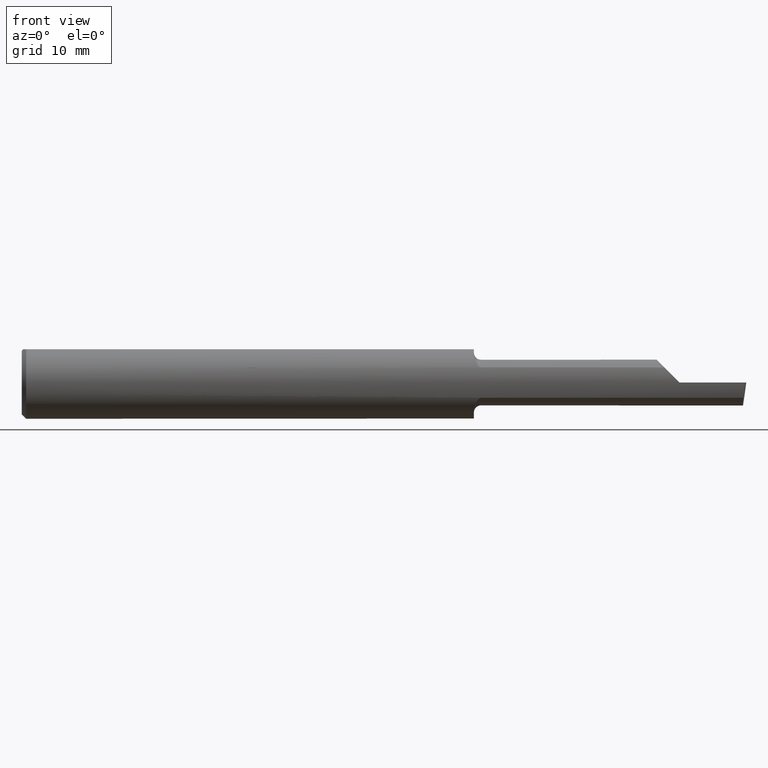
[diagram: clean part render]
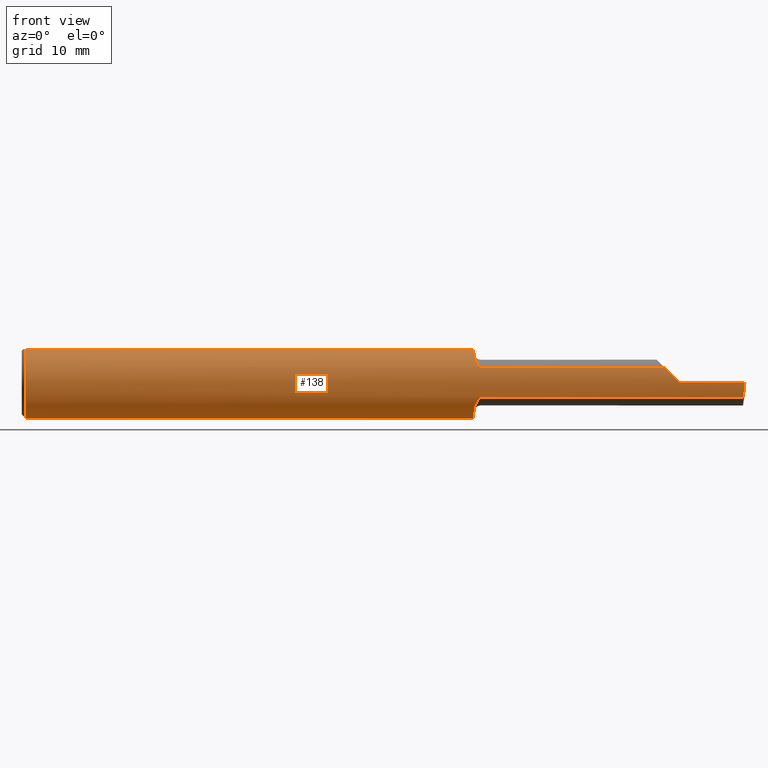
[diagram: same view with one face highlighted and labeled with its STEP entity id]
A machine part, front view. The second image highlights one B-rep face of the part: STEP entity #138.
In plain terms, the highlighted cylindrical surface (edge-blend (fillet) strip) has radius 3.1712 mm, axis along (-1, -0, -0).
Its self-contained STEP definition (entity closure, byte-faithful):
#3 = VERTEX_POINT ( 'NONE', #16 ) ;
#6 = EDGE_CURVE ( 'NONE', #158, #464, #121, .T. ) ;
#8 = CARTESIAN_POINT ( 'NONE',  ( 1.581867218484673376, -0.1130881303947560979, -0.05290831216931966147 ) ) ;
#13 = DIRECTION ( 'NONE',  ( 1.000000000000000000, -3.414809992080329023E-18, 0.0000000000000000000 ) ) ;
#16 = CARTESIAN_POINT ( 'NONE',  ( 1.560000000000000275, -0.07089166666666688044, 0.1027710761704001691 ) ) ;
#22 = CARTESIAN_POINT ( 'NONE',  ( 1.559999999999996723, -0.07604212793636101753, 0.09921827904968776035 ) ) ;
#25 = VERTEX_POINT ( 'NONE', #385 ) ;
#28 = EDGE_CURVE ( 'NONE', #414, #618, #98, .T. ) ;
#29 = DIRECTION ( 'NONE',  ( -1.000000000000000000, 3.414809992080329023E-18, -0.0000000000000000000 ) ) ;
#32 = CARTESIAN_POINT ( 'NONE',  ( 2.234090882882975748, -0.1209466293052443159, 0.03590911711702327036 ) ) ;
#35 = CARTESIAN_POINT ( 'NONE',  ( 0.01499999999999999424, 0.0000000000000000000, 0.0000000000000000000 ) ) ;
#38 = DIRECTION ( 'NONE',  ( 0.0000000000000000000, 0.0000000000000000000, 1.000000000000000000 ) ) ;
#44 = EDGE_CURVE ( 'NONE', #618, #464, #177, .T. ) ;
#48 = ORIENTED_EDGE ( 'NONE', *, *, #555, .T. ) ;
#50 = CARTESIAN_POINT ( 'NONE',  ( 1.560000000000000275, -0.07089166666666688044, -0.1027710761704001691 ) ) ;
#52 = CARTESIAN_POINT ( 'NONE',  ( 1.560000000000000275, -0.04895916665957457392, 0.1148500000000000215 ) ) ;
#54 = CARTESIAN_POINT ( 'NONE',  ( 1.935000000000000053, -0.1133222222222223519, 0.05239843939104731063 ) ) ;
#60 = LINE ( 'NONE', #54, #197 ) ;
#61 = LINE ( 'NONE', #335, #441 ) ;
#62 = DIRECTION ( 'NONE',  ( -1.000000000000000000, -0.0000000000000000000, -0.0000000000000000000 ) ) ;
#64 = ORIENTED_EDGE ( 'NONE', *, *, #568, .F. ) ;
#81 = ORIENTED_EDGE ( 'NONE', *, *, #467, .F. ) ;
#86 = ORIENTED_EDGE ( 'NONE', *, *, #248, .T. ) ;
#88 = VECTOR ( 'NONE', #118, 39.37007874015748143 ) ;
#94 = CARTESIAN_POINT ( 'NONE',  ( 1.578003366130775520, -0.1118869025553488189, 0.05540929543234566351 ) ) ;
#97 = DIRECTION ( 'NONE',  ( -1.000000000000000000, -0.0000000000000000000, -0.0000000000000000000 ) ) ;
#98 = B_SPLINE_CURVE_WITH_KNOTS ( 'NONE', 3,
 ( #665, #223, #8, #417, #363, #420, #269, #122, #115, #629, #472, #371, #432, #256 ),
 .UNSPECIFIED., .F., .F.,
 ( 4, 2, 2, 2, 2, 2, 4 ),
 ( 1.961860195742902937E-07, 0.0001199556417434004984, 0.0002397150974672266905, 0.0004792340089148647633, 0.0009582718318101505041, 0.001437309654705436462, 0.001916347477600722094 ),
 .UNSPECIFIED. ) ;
#101 = B_SPLINE_CURVE_WITH_KNOTS ( 'NONE', 3,
 ( #289, #22, #447, #396, #642, #409, #489, #144, #215, #94, #160, #313, #560, #557 ),
 .UNSPECIFIED., .F., .F.,
 ( 4, 2, 2, 2, 2, 2, 4 ),
 ( 6.218642020841720630E-05, 0.0005341583913332135190, 0.001006130362458009832, 0.001478102333582805711, 0.001714088319145208638, 0.001832081311926402837, 0.001950074304707597470 ),
 .UNSPECIFIED. ) ;
#104 = ORIENTED_EDGE ( 'NONE', *, *, #28, .F. ) ;
#106 = DIRECTION ( 'NONE',  ( 1.000000000000000000, -3.414809992080329023E-18, 0.0000000000000000000 ) ) ;
#112 = CARTESIAN_POINT ( 'NONE',  ( 0.01499999999999999424, 0.0000000000000000000, -0.1248500000000000026 ) ) ;
#113 = EDGE_CURVE ( 'NONE', #158, #634, #325, .T. ) ;
#115 = CARTESIAN_POINT ( 'NONE',  ( 1.566709462345916570, -0.1014961360546400848, -0.07295290821911699919 ) ) ;
#118 = DIRECTION ( 'NONE',  ( 1.000000000000000000, 0.0000000000000000000, 0.0000000000000000000 ) ) ;
#121 = LINE ( 'NONE', #429, #88 ) ;
#122 = CARTESIAN_POINT ( 'NONE',  ( 1.568837986083220226, -0.1048226606062678534, -0.06804511026469603485 ) ) ;
#136 = ORIENTED_EDGE ( 'NONE', *, *, #416, .F. ) ;
#138 = ADVANCED_FACE ( 'NONE', ( #179 ), #485, .T. ) ;
#139 = CARTESIAN_POINT ( 'NONE',  ( 2.251833290544947630, -0.1248500000000000165, 0.01816670945505163143 ) ) ;
#144 = CARTESIAN_POINT ( 'NONE',  ( 1.573217602974940066, -0.1090277136498278843, 0.06089509507572534591 ) ) ;
#146 = CARTESIAN_POINT ( 'NONE',  ( 0.0000000000000000000, 0.0000000000000000000, 0.0000000000000000000 ) ) ;
#148 = DIRECTION ( 'NONE',  ( -1.000000000000000000, -0.0000000000000000000, -0.0000000000000000000 ) ) ;
#152 = ORIENTED_EDGE ( 'NONE', *, *, #6, .T. ) ;
#154 = AXIS2_PLACEMENT_3D ( 'NONE', #146, #97, #611 ) ;
#155 = DIRECTION ( 'NONE',  ( 0.0000000000000000000, 1.000000000000000000, 0.0000000000000000000 ) ) ;
#158 = VERTEX_POINT ( 'NONE', #509 ) ;
#160 = CARTESIAN_POINT ( 'NONE',  ( 1.579156347344548239, -0.1123603976562050771, 0.05443691454869342000 ) ) ;
#166 = ORIENTED_EDGE ( 'NONE', *, *, #191, .T. ) ;
#177 = CIRCLE ( 'NONE', #484, 0.1248500000000000026 ) ;
#179 = FACE_OUTER_BOUND ( 'NONE', #185, .T. ) ;
#183 = VERTEX_POINT ( 'NONE', #654 ) ;
#185 = EDGE_LOOP ( 'NONE', ( #645, #166, #86, #239, #655, #81, #64, #48, #136, #488, #152, #382, #104 ) ) ;
#186 = VERTEX_POINT ( 'NONE', #247 ) ;
#190 = CARTESIAN_POINT ( 'NONE',  ( 2.270000000000000018, -0.1248500000000000165, 2.816687638038912303E-17 ) ) ;
#191 = EDGE_CURVE ( 'NONE', #183, #25, #329, .T. ) ;
#197 = VECTOR ( 'NONE', #106, 39.37007874015748143 ) ;
#215 = CARTESIAN_POINT ( 'NONE',  ( 1.574891482046761437, -0.1103130882036816862, 0.05851436580809123850 ) ) ;
#223 = CARTESIAN_POINT ( 'NONE',  ( 1.583397973893800659, -0.1133222222222222964, -0.05239843939104738696 ) ) ;
#228 = EDGE_CURVE ( 'NONE', #546, #507, #498, .T. ) ;
#230 = DIRECTION ( 'NONE',  ( 0.0000000000000000000, 0.0000000000000000000, 1.000000000000000000 ) ) ;
#231 = CARTESIAN_POINT ( 'NONE',  ( 1.560000000000000275, 0.04895916665957456004, 0.1148500000000000076 ) ) ;
#239 = ORIENTED_EDGE ( 'NONE', *, *, #228, .T. ) ;
#246 = CARTESIAN_POINT ( 'NONE',  ( 2.493107549887202623, -0.1248500000000000026, -0.01816670945505170429 ) ) ;
#247 = CARTESIAN_POINT ( 'NONE',  ( 1.585000000000000187, -0.1133222222222222825, 0.05239843939104733145 ) ) ;
#248 = EDGE_CURVE ( 'NONE', #25, #546, #586, .T. ) ;
#251 = VERTEX_POINT ( 'NONE', #275 ) ;
#256 = CARTESIAN_POINT ( 'NONE',  ( 1.560000000000000275, -0.07089166666666688044, -0.1027710761704001691 ) ) ;
#269 = CARTESIAN_POINT ( 'NONE',  ( 1.573205018706407499, -0.1090156405642971477, -0.06091562844815642808 ) ) ;
#275 = CARTESIAN_POINT ( 'NONE',  ( 0.01499999999999999077, -0.04895916665957456004, 0.1148500000000000215 ) ) ;
#276 = CARTESIAN_POINT ( 'NONE',  ( 4.111069666048746882E-31, -0.1248499999999999888, 9.802154982235641300E-16 ) ) ;
#279 = CARTESIAN_POINT ( 'NONE',  ( 0.01499999999999999424, 0.0000000000000000000, 0.0000000000000000000 ) ) ;
#283 = VECTOR ( 'NONE', #345, 39.37007874015748143 ) ;
#284 = CARTESIAN_POINT ( 'NONE',  ( 2.217601560608951861, -0.1133222222222222686, 0.05239843939104743553 ) ) ;
#289 = CARTESIAN_POINT ( 'NONE',  ( 1.560000000000000275, -0.07089166666666688044, 0.1027710761704001691 ) ) ;
#294 = CARTESIAN_POINT ( 'NONE',  ( 1.560000000000000275, 0.0000000000000000000, 0.0000000000000000000 ) ) ;
#309 = CIRCLE ( 'NONE', #659, 0.1248500000000000026 ) ;
#313 = CARTESIAN_POINT ( 'NONE',  ( 1.581855009147952407, -0.1130869929873387497, 0.05291095013438983780 ) ) ;
#325 = CIRCLE ( 'NONE', #419, 0.1248500000000000026 ) ;
#329 =( BOUNDED_CURVE ( )  B_SPLINE_CURVE ( 3, ( #502, #652, #246, #333 ),
 .UNSPECIFIED., .F., .F. ) 
 B_SPLINE_CURVE_WITH_KNOTS ( ( 4, 4 ),
 ( 0.9276418632516072460, 1.360746882514361156 ),
 .UNSPECIFIED. ) 
 CURVE ( )  GEOMETRIC_REPRESENTATION_ITEM ( )  RATIONAL_B_SPLINE_CURVE ( ( 1.000000000000000000, 0.9844293286710340540, 0.9844293286710340540, 1.000000000000000000 ) ) 
 REPRESENTATION_ITEM ( '' )  );
#333 = CARTESIAN_POINT ( 'NONE',  ( 2.495338905960690301, -0.1248500000000000582, -6.632093541198147639E-17 ) ) ;
#335 = CARTESIAN_POINT ( 'NONE',  ( 1.935000000000000053, -0.1133222222222223519, -0.05239843939104731063 ) ) ;
#340 = DIRECTION ( 'NONE',  ( -1.000000000000000000, -0.0000000000000000000, -0.0000000000000000000 ) ) ;
#345 = DIRECTION ( 'NONE',  ( -1.000000000000000000, -0.0000000000000000000, -0.0000000000000000000 ) ) ;
#359 = LINE ( 'NONE', #367, #657 ) ;
#362 = CARTESIAN_POINT ( 'NONE',  ( 1.585000000000000187, -0.1133222222222222131, -0.05239843939104739390 ) ) ;
#363 = CARTESIAN_POINT ( 'NONE',  ( 1.578018389903473873, -0.1118940578004066627, -0.05539504279880008014 ) ) ;
#367 = CARTESIAN_POINT ( 'NONE',  ( 0.0000000000000000000, -0.04895916665957456004, 0.1148500000000000076 ) ) ;
#371 = CARTESIAN_POINT ( 'NONE',  ( 1.560429435078794835, -0.08094870196673342733, -0.09525057567498892985 ) ) ;
#382 = ORIENTED_EDGE ( 'NONE', *, *, #44, .F. ) ;
#385 = CARTESIAN_POINT ( 'NONE',  ( 2.495338905960690301, -0.1248500000000000582, -6.632093541198147639E-17 ) ) ;
#386 = AXIS2_PLACEMENT_3D ( 'NONE', #294, #461, #155 ) ;
#396 = CARTESIAN_POINT ( 'NONE',  ( 1.562066153268989011, -0.08982957272875709276, 0.08692514756739024018 ) ) ;
#409 = CARTESIAN_POINT ( 'NONE',  ( 1.566702553529778719, -0.1014824713796366878, 0.07297083456247521749 ) ) ;
#414 = VERTEX_POINT ( 'NONE', #362 ) ;
#416 = EDGE_CURVE ( 'NONE', #634, #251, #309, .T. ) ;
#417 = CARTESIAN_POINT ( 'NONE',  ( 1.579195140613335768, -0.1123729516825158897, -0.05441079362540559433 ) ) ;
#419 = AXIS2_PLACEMENT_3D ( 'NONE', #35, #148, #38 ) ;
#420 = CARTESIAN_POINT ( 'NONE',  ( 1.574878942730255638, -0.1103076286869489747, -0.05852540734030604180 ) ) ;
#429 = CARTESIAN_POINT ( 'NONE',  ( 0.0000000000000000000, 0.04895916665957457392, 0.1148500000000000076 ) ) ;
#432 = CARTESIAN_POINT ( 'NONE',  ( 1.560000000000000275, -0.07605073478940857501, -0.09921234202752106379 ) ) ;
#441 = VECTOR ( 'NONE', #29, 39.37007874015748143 ) ;
#447 = CARTESIAN_POINT ( 'NONE',  ( 1.560418395875214470, -0.08085314529530901462, 0.09533153891603383945 ) ) ;
#458 = EDGE_CURVE ( 'NONE', #183, #414, #61, .T. ) ;
#461 = DIRECTION ( 'NONE',  ( 1.000000000000000000, -3.414809992080329023E-18, 0.0000000000000000000 ) ) ;
#464 = VERTEX_POINT ( 'NONE', #231 ) ;
#467 = EDGE_CURVE ( 'NONE', #3, #186, #101, .T. ) ;
#472 = CARTESIAN_POINT ( 'NONE',  ( 1.562089430766778086, -0.08992021952243410554, -0.08683155323701798045 ) ) ;
#479 = VERTEX_POINT ( 'NONE', #52 ) ;
#484 = AXIS2_PLACEMENT_3D ( 'NONE', #515, #13, #626 ) ;
#485 = CYLINDRICAL_SURFACE ( 'NONE', #154, 0.1248500000000000026 ) ;
#488 = ORIENTED_EDGE ( 'NONE', *, *, #113, .F. ) ;
#489 = CARTESIAN_POINT ( 'NONE',  ( 1.568812999615359693, -0.1047986892473505710, 0.06808587976958066501 ) ) ;
#498 =( BOUNDED_CURVE ( )  B_SPLINE_CURVE ( 3, ( #190, #139, #32, #284 ),
 .UNSPECIFIED., .F., .T. ) 
 B_SPLINE_CURVE_WITH_KNOTS ( ( 4, 4 ),
 ( 4.712388980384688786, 5.145493999647445804 ),
 .UNSPECIFIED. ) 
 CURVE ( )  GEOMETRIC_REPRESENTATION_ITEM ( )  RATIONAL_B_SPLINE_CURVE ( ( 1.000000000000000000, 0.9844293286710339430, 0.9844293286710339430, 1.000000000000000000 ) ) 
 REPRESENTATION_ITEM ( '' )  );
#502 = CARTESIAN_POINT ( 'NONE',  ( 2.489204846642126157, -0.1133222222222223519, -0.05239843939104731063 ) ) ;
#507 = VERTEX_POINT ( 'NONE', #563 ) ;
#509 = CARTESIAN_POINT ( 'NONE',  ( 0.01499999999999999424, 0.04895916665957457392, 0.1148500000000000076 ) ) ;
#515 = CARTESIAN_POINT ( 'NONE',  ( 1.560000000000000275, 0.0000000000000000000, 0.0000000000000000000 ) ) ;
#527 = CIRCLE ( 'NONE', #386, 0.1248500000000000026 ) ;
#546 = VERTEX_POINT ( 'NONE', #667 ) ;
#555 = EDGE_CURVE ( 'NONE', #479, #251, #359, .T. ) ;
#557 = CARTESIAN_POINT ( 'NONE',  ( 1.585000000000000187, -0.1133222222222222825, 0.05239843939104733145 ) ) ;
#560 = CARTESIAN_POINT ( 'NONE',  ( 1.583393805215130179, -0.1133222222232597443, 0.05239843938880400093 ) ) ;
#563 = CARTESIAN_POINT ( 'NONE',  ( 2.217601560608951861, -0.1133222222222222686, 0.05239843939104743553 ) ) ;
#568 = EDGE_CURVE ( 'NONE', #479, #3, #527, .T. ) ;
#586 = LINE ( 'NONE', #276, #283 ) ;
#607 = EDGE_CURVE ( 'NONE', #186, #507, #60, .T. ) ;
#611 = DIRECTION ( 'NONE',  ( 0.0000000000000000000, 0.0000000000000000000, 1.000000000000000000 ) ) ;
#618 = VERTEX_POINT ( 'NONE', #50 ) ;
#626 = DIRECTION ( 'NONE',  ( 0.0000000000000000000, 1.000000000000000000, 0.0000000000000000000 ) ) ;
#629 = CARTESIAN_POINT ( 'NONE',  ( 1.563310246323733832, -0.09402499227299762619, -0.08235832246780928900 ) ) ;
#634 = VERTEX_POINT ( 'NONE', #112 ) ;
#642 = CARTESIAN_POINT ( 'NONE',  ( 1.563311842522019601, -0.09402697795089834387, 0.08235509766544017729 ) ) ;
#645 = ORIENTED_EDGE ( 'NONE', *, *, #458, .F. ) ;
#652 = CARTESIAN_POINT ( 'NONE',  ( 2.491030522740640407, -0.1209466293052442881, -0.03590911711702318015 ) ) ;
#654 = CARTESIAN_POINT ( 'NONE',  ( 2.489204846642126157, -0.1133222222222223519, -0.05239843939104731063 ) ) ;
#655 = ORIENTED_EDGE ( 'NONE', *, *, #607, .F. ) ;
#657 = VECTOR ( 'NONE', #62, 39.37007874015748143 ) ;
#659 = AXIS2_PLACEMENT_3D ( 'NONE', #279, #340, #230 ) ;
#665 = CARTESIAN_POINT ( 'NONE',  ( 1.585000000000000187, -0.1133222222222222131, -0.05239843939104739390 ) ) ;
#667 = CARTESIAN_POINT ( 'NONE',  ( 2.270000000000000018, -0.1248500000000000165, 2.816687638038912303E-17 ) ) ;